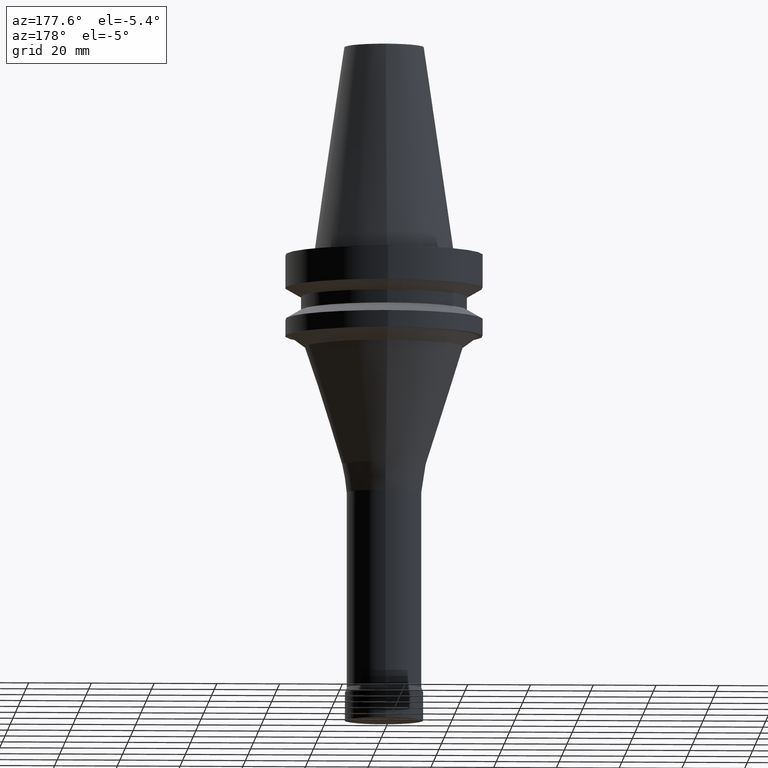
[diagram: clean part render]
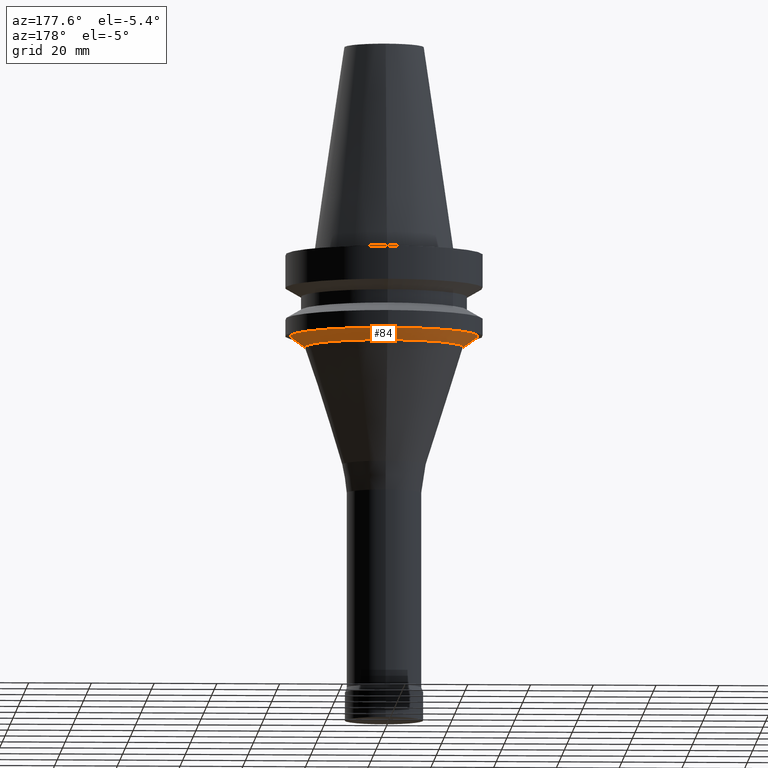
[diagram: same view with one face highlighted and labeled with its STEP entity id]
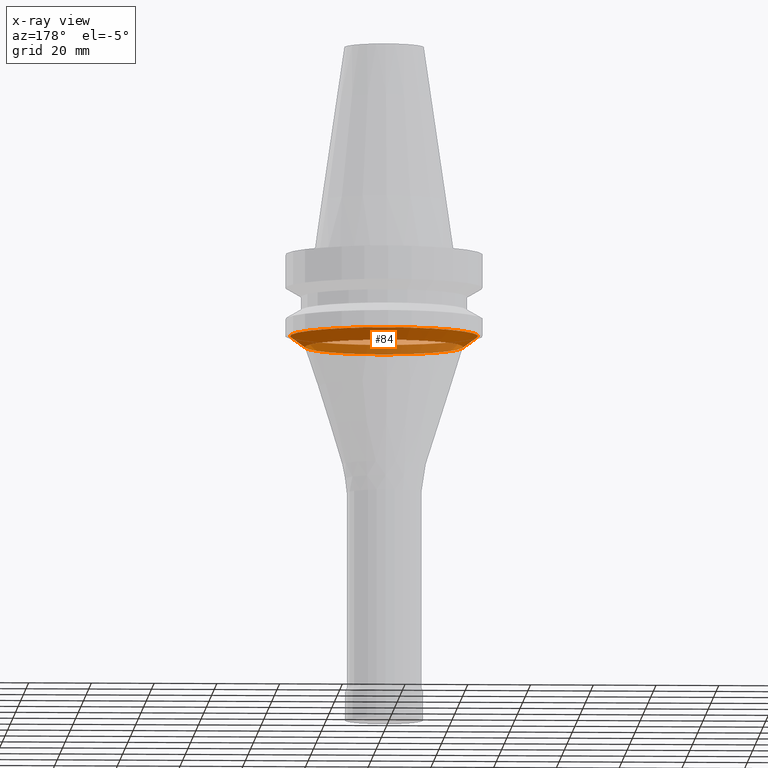
[diagram: x-ray of the same camera — body ghosted, the highlighted face saturated]
A machine part, auxiliary view. The second image highlights one B-rep face of the part: STEP entity #84.
The next image is the same camera in x-ray: the body ghosted, the highlighted face saturated — about 36% of this face is hidden behind the body in this view.
In plain terms, the highlighted conical surface has half-angle 53.804 deg.
Its self-contained STEP definition (entity closure, byte-faithful):
#84=ADVANCED_FACE('',(#119,#120),#121,.T.);
#119=FACE_BOUND('',#168,.T.);
#120=FACE_BOUND('',#169,.T.);
#121=CONICAL_SURFACE('',#170,27.61713947,0.939063940538338);
#168=EDGE_LOOP('',(#235));
#169=EDGE_LOOP('',(#236));
#170=AXIS2_PLACEMENT_3D('',#237,#238,#239);
#235=ORIENTED_EDGE('',*,*,#284,.F.);
#236=ORIENTED_EDGE('',*,*,#283,.T.);
#237=CARTESIAN_POINT('',(1.76004457612557E-015,3.52008915225114E-015,-28.743709245));
#238=DIRECTION('',(-6.12323399573677E-017,-1.22464679914735E-016,1.0));
#239=DIRECTION('',(-1.23259516440783E-032,1.0,1.22464679914735E-016));
#283=EDGE_CURVE('',#308,#308,#309,.T.);
#284=EDGE_CURVE('',#310,#310,#311,.T.);
#308=VERTEX_POINT('',#340);
#309=CIRCLE('',#341,30.0);
#310=VERTEX_POINT('',#342);
#311=CIRCLE('',#343,25.23427894);
#340=CARTESIAN_POINT('',(1.65327317884893E-015,30.0,-27.0));
#341=AXIS2_PLACEMENT_3D('',#381,#382,#383);
#342=CARTESIAN_POINT('',(1.86681597340222E-015,25.23427894,-30.48741849));
#343=AXIS2_PLACEMENT_3D('',#384,#385,#386);
#381=CARTESIAN_POINT('',(1.65327317884893E-015,3.30654635769785E-015,-27.0));
#382=DIRECTION('',(6.12323399573677E-017,1.22464679914735E-016,-1.0));
#383=DIRECTION('',(-1.23259516440783E-032,1.0,1.22464679914735E-016));
#384=CARTESIAN_POINT('',(1.86681597340222E-015,3.73363194680443E-015,-30.48741849));
#385=DIRECTION('',(6.12323399573677E-017,1.22464679914735E-016,-1.0));
#386=DIRECTION('',(-1.23259516440783E-032,1.0,1.22464679914735E-016));